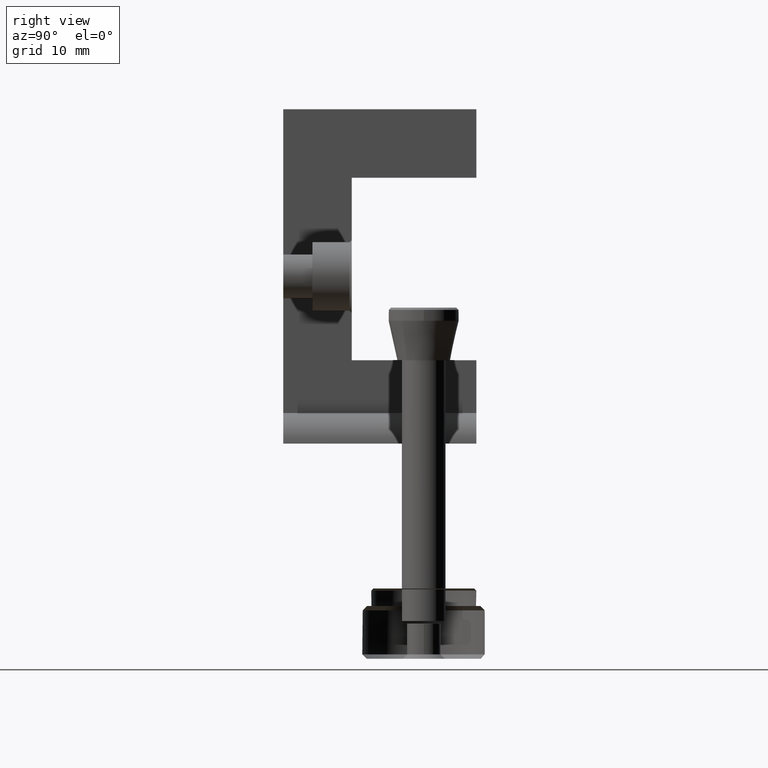
[diagram: clean part render]
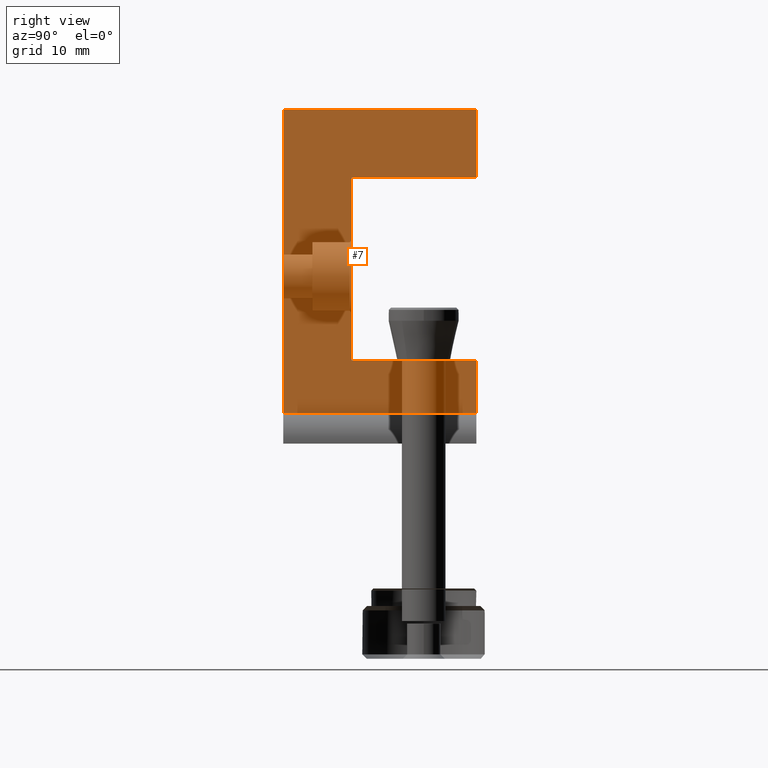
[diagram: same view with one face highlighted and labeled with its STEP entity id]
A machine part, right view. The second image highlights one B-rep face of the part: STEP entity #7.
In plain terms, the highlighted planar face has unit normal (-1, 0, 0).
Its self-contained STEP definition (entity closure, byte-faithful):
#7 = ADVANCED_FACE ( 'NONE', ( #1132 ), #1370, .T. ) ;
#18 = VERTEX_POINT ( 'NONE', #629 ) ;
#23 = ORIENTED_EDGE ( 'NONE', *, *, #65, .F. ) ;
#65 = EDGE_CURVE ( 'NONE', #726, #243, #993, .T. ) ;
#99 = CARTESIAN_POINT ( 'NONE',  ( 42.86376350985537442, 20.34850150571975647, 9.647686369282110874 ) ) ;
#128 = VERTEX_POINT ( 'NONE', #620 ) ;
#160 = DIRECTION ( 'NONE',  ( -1.000000000000000000, 0.000000000000000000, 9.106159978880878627E-17 ) ) ;
#195 = AXIS2_PLACEMENT_3D ( 'NONE', #880, #160, #752 ) ;
#198 = ORIENTED_EDGE ( 'NONE', *, *, #513, .T. ) ;
#212 = EDGE_CURVE ( 'NONE', #424, #18, #1019, .T. ) ;
#222 = LINE ( 'NONE', #584, #1004 ) ;
#231 = DIRECTION ( 'NONE',  ( -9.106159978880878627E-17, -0.000000000000000000, -1.000000000000000000 ) ) ;
#243 = VERTEX_POINT ( 'NONE', #609 ) ;
#309 = LINE ( 'NONE', #1024, #922 ) ;
#310 = LINE ( 'NONE', #789, #1276 ) ;
#363 = ORIENTED_EDGE ( 'NONE', *, *, #1351, .T. ) ;
#424 = VERTEX_POINT ( 'NONE', #517 ) ;
#481 = CARTESIAN_POINT ( 'NONE',  ( 42.86376350985537442, 12.54850150571975753, 13.14768636928211087 ) ) ;
#490 = CARTESIAN_POINT ( 'NONE',  ( 42.86376350985537442, 34.54850150571975576, 39.94768636928211691 ) ) ;
#513 = EDGE_CURVE ( 'NONE', #654, #424, #651, .T. ) ;
#517 = CARTESIAN_POINT ( 'NONE',  ( 42.86376350985537442, 20.34850150571975647, 39.94768636928211691 ) ) ;
#546 = DIRECTION ( 'NONE',  ( 0.000000000000000000, 1.000000000000000000, -0.000000000000000000 ) ) ;
#584 = CARTESIAN_POINT ( 'NONE',  ( 42.86376350985537442, 34.54850150571975576, 9.647686369282110874 ) ) ;
#609 = CARTESIAN_POINT ( 'NONE',  ( 42.86376350985538153, 12.54850150571975753, 13.14768636928211087 ) ) ;
#620 = CARTESIAN_POINT ( 'NONE',  ( 42.86376350985537442, 34.54850150571975576, 13.14768636928211087 ) ) ;
#629 = CARTESIAN_POINT ( 'NONE',  ( 42.86376350985537442, 20.34850150571975647, 19.14768636928211620 ) ) ;
#651 = LINE ( 'NONE', #490, #1226 ) ;
#654 = VERTEX_POINT ( 'NONE', #1495 ) ;
#660 = ORIENTED_EDGE ( 'NONE', *, *, #212, .T. ) ;
#673 = DIRECTION ( 'NONE',  ( -9.106159978880878627E-17, -0.000000000000000000, -1.000000000000000000 ) ) ;
#705 = ORIENTED_EDGE ( 'NONE', *, *, #748, .F. ) ;
#715 = EDGE_CURVE ( 'NONE', #18, #742, #310, .T. ) ;
#718 = EDGE_LOOP ( 'NONE', ( #705, #23, #972, #1324, #198, #660, #1300, #363 ) ) ;
#726 = VERTEX_POINT ( 'NONE', #1081 ) ;
#742 = VERTEX_POINT ( 'NONE', #1540 ) ;
#748 = EDGE_CURVE ( 'NONE', #243, #128, #835, .T. ) ;
#752 = DIRECTION ( 'NONE',  ( 9.106159978880878627E-17, 0.000000000000000000, 1.000000000000000000 ) ) ;
#789 = CARTESIAN_POINT ( 'NONE',  ( 42.86376350985537442, 34.54850150571975576, 19.14768636928211620 ) ) ;
#835 = LINE ( 'NONE', #481, #1305 ) ;
#847 = VECTOR ( 'NONE', #987, 1000.000000000000000 ) ;
#880 = CARTESIAN_POINT ( 'NONE',  ( 42.86376350985537442, 34.54850150571975576, 9.647686369282110874 ) ) ;
#922 = VECTOR ( 'NONE', #1277, 1000.000000000000000 ) ;
#951 = LINE ( 'NONE', #1286, #1436 ) ;
#952 = EDGE_CURVE ( 'NONE', #726, #1249, #309, .T. ) ;
#972 = ORIENTED_EDGE ( 'NONE', *, *, #952, .T. ) ;
#987 = DIRECTION ( 'NONE',  ( -0.000000000000000000, 0.000000000000000000, -1.000000000000000000 ) ) ;
#993 = LINE ( 'NONE', #1478, #847 ) ;
#1004 = VECTOR ( 'NONE', #231, 1000.000000000000000 ) ;
#1013 = CARTESIAN_POINT ( 'NONE',  ( 42.86376350985538153, 34.54850150571975576, 47.74768636928211407 ) ) ;
#1019 = LINE ( 'NONE', #99, #1093 ) ;
#1024 = CARTESIAN_POINT ( 'NONE',  ( 42.86376350985538153, 34.54850150571975576, 47.74768636928211407 ) ) ;
#1081 = CARTESIAN_POINT ( 'NONE',  ( 42.86376350985538153, 12.54850150571975576, 47.74768636928211407 ) ) ;
#1093 = VECTOR ( 'NONE', #673, 1000.000000000000000 ) ;
#1132 = FACE_OUTER_BOUND ( 'NONE', #718, .T. ) ;
#1165 = DIRECTION ( 'NONE',  ( -9.106159978880878627E-17, -0.000000000000000000, -1.000000000000000000 ) ) ;
#1226 = VECTOR ( 'NONE', #1454, 1000.000000000000000 ) ;
#1249 = VERTEX_POINT ( 'NONE', #1013 ) ;
#1276 = VECTOR ( 'NONE', #546, 1000.000000000000000 ) ;
#1277 = DIRECTION ( 'NONE',  ( 0.000000000000000000, 1.000000000000000000, -0.000000000000000000 ) ) ;
#1286 = CARTESIAN_POINT ( 'NONE',  ( 42.86376350985537442, 34.54850150571975576, 9.647686369282110874 ) ) ;
#1300 = ORIENTED_EDGE ( 'NONE', *, *, #715, .T. ) ;
#1305 = VECTOR ( 'NONE', #1423, 1000.000000000000000 ) ;
#1324 = ORIENTED_EDGE ( 'NONE', *, *, #1387, .T. ) ;
#1351 = EDGE_CURVE ( 'NONE', #742, #128, #951, .T. ) ;
#1370 = PLANE ( 'NONE',  #195 ) ;
#1387 = EDGE_CURVE ( 'NONE', #1249, #654, #222, .T. ) ;
#1423 = DIRECTION ( 'NONE',  ( 0.000000000000000000, 1.000000000000000000, 0.000000000000000000 ) ) ;
#1436 = VECTOR ( 'NONE', #1165, 1000.000000000000000 ) ;
#1454 = DIRECTION ( 'NONE',  ( -0.000000000000000000, -1.000000000000000000, 0.000000000000000000 ) ) ;
#1478 = CARTESIAN_POINT ( 'NONE',  ( 42.86376350985538153, 12.54850150571975753, 28.69768636928211336 ) ) ;
#1495 = CARTESIAN_POINT ( 'NONE',  ( 42.86376350985537442, 34.54850150571975576, 39.94768636928211691 ) ) ;
#1540 = CARTESIAN_POINT ( 'NONE',  ( 42.86376350985537442, 34.54850150571975576, 19.14768636928211620 ) ) ;